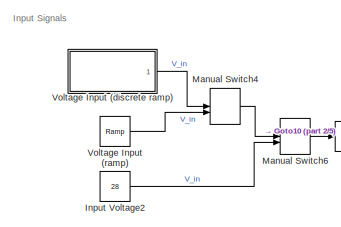
[diagram: root canvas - part 1/5, top left region]
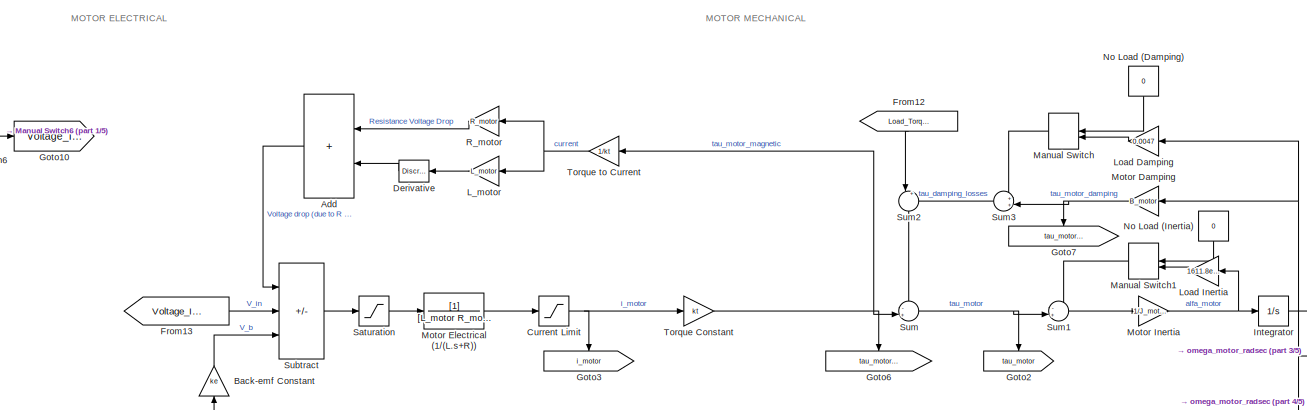
[diagram: root canvas - part 2/5, top center region]
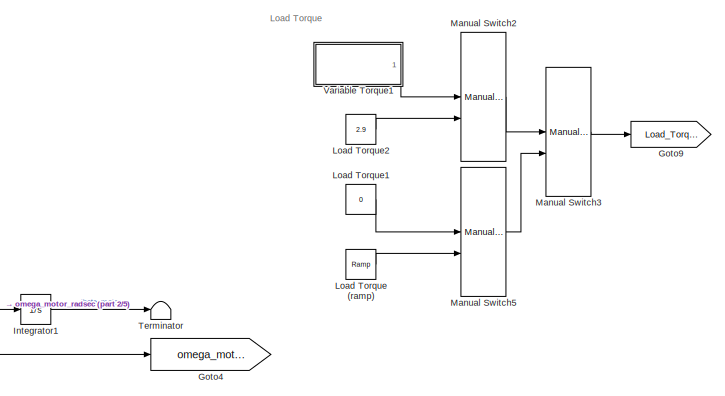
[diagram: root canvas - part 3/5, top right region]
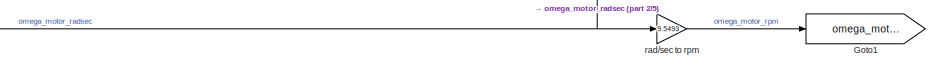
[diagram: root canvas - part 4/5, central region]
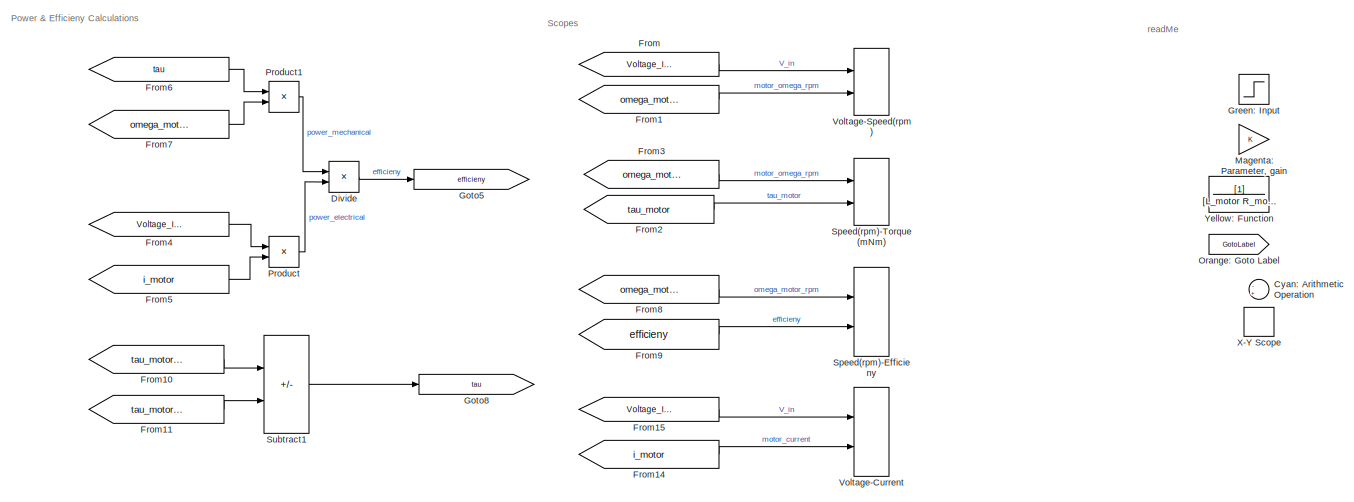
[diagram: root canvas - part 5/5, bottom center region]
MODEL slx_0a9aabed3ec6
KIND model
CONFIG AbsTol = auto
CONFIG EnableMultiTasking = off
CONFIG FixedStep = auto
CONFIG MaxStep = auto
CONFIG MinStep = auto
CONFIG RelTol = 1e-3
CONFIG SampleTimeConstraint = Unconstrained
CONFIG SolverName = VariableStepAuto
CONFIG StartTime = 0.0
CONFIG StopTime = 28
BLOCK [Sum] Add
  IconShape = rectangular
  NameLocation = top
  Ports = [2, 1]
BLOCK [Gain] Back-emf Constant
  Gain = ke
  NameLocation = right
BLOCK [Saturate] Current Limit
  LowerLimit = 0
  UpperLimit = 80
BLOCK [Sum] Cyan: Arithmetic Operation
  Inputs = -+|
  NameLocation = right
  Ports = [2, 1]
BLOCK [Reference] Derivative  REF=simulink/Discrete/Discrete Derivative
  Ports = [1, 1]
  SourceBlock = simulink/Discrete/Discrete Derivative
  SourceProductBaseCode = SL
  SourceType = Discrete Derivative
BLOCK [Product] Divide
  Inputs = */
  Ports = [2, 1]
BLOCK [From] From
  GotoTag = Voltage_Input
BLOCK [From] From1
  GotoTag = omega_motor_rpm
BLOCK [From] From10
  GotoTag = tau_motor_magnetic
BLOCK [From] From11
  GotoTag = tau_motor_damping
BLOCK [From] From12
  GotoTag = Load_Torque
  NameLocation = left
BLOCK [From] From13
  GotoTag = Voltage_Input
BLOCK [From] From14
  GotoTag = i_motor
BLOCK [From] From15
  GotoTag = Voltage_Input
BLOCK [From] From2
  GotoTag = tau_motor
BLOCK [From] From3
  GotoTag = omega_motor_rpm
BLOCK [From] From4
  GotoTag = Voltage_Input
BLOCK [From] From5
  GotoTag = i_motor
BLOCK [From] From6
  GotoTag = tau
BLOCK [From] From7
  GotoTag = omega_motor_radsec
BLOCK [From] From8
  GotoTag = omega_motor_rpm
BLOCK [From] From9
  GotoTag = efficieny
BLOCK [Goto] Goto1
  GotoTag = omega_motor_rpm
BLOCK [Goto] Goto10
  GotoTag = Voltage_Input
BLOCK [Goto] Goto2
  GotoTag = tau_motor
  NameLocation = left
BLOCK [Goto] Goto3
  GotoTag = i_motor
BLOCK [Goto] Goto4
  GotoTag = omega_motor_radsec
BLOCK [Goto] Goto5
  GotoTag = efficieny
BLOCK [Goto] Goto6
  GotoTag = tau_motor_magnetic
  NameLocation = left
BLOCK [Goto] Goto7
  GotoTag = tau_motor_damping
  NameLocation = left
BLOCK [Goto] Goto8
  GotoTag = tau
BLOCK [Goto] Goto9
  GotoTag = Load_Torque
BLOCK [Step] Green: Input
  NameLocation = right
  SampleTime = 0
BLOCK [Constant] Input Voltage2
  Value = 28
BLOCK [Integrator] Integrator
  Ports = [1, 1]
BLOCK [Integrator] Integrator1
  Ports = [1, 1]
BLOCK [Gain] L_motor
  Gain = L_motor
BLOCK [Gain] Load Damping
  Gain = 0.0047
BLOCK [Gain] Load Inertia
  Gain = 1611.8e-06
BLOCK [Reference] Load Torque (ramp)  REF=simulink/Sources/Ramp
  Ports = [0, 1]
  SourceBlock = simulink/Sources/Ramp
  SourceProductBaseCode = SL
  SourceType = Ramp
BLOCK [Constant] Load Torque1
  Value = 0
BLOCK [Constant] Load Torque2
  Value = 2.9
BLOCK [Gain] Magenta: Parameter, gain
  NameLocation = right
BLOCK [ManualSwitch] Manual Switch
  NameLocation = top
BLOCK [ManualSwitch] Manual Switch1
  NameLocation = left
BLOCK [ManualSwitch] Manual Switch2
BLOCK [ManualSwitch] Manual Switch3
  CurrentSetting = 0
BLOCK [ManualSwitch] Manual Switch4
  CurrentSetting = 0
BLOCK [ManualSwitch] Manual Switch5
  CurrentSetting = 0
BLOCK [ManualSwitch] Manual Switch6
  CurrentSetting = 0
BLOCK [Gain] Motor Damping
  Gain = B_motor
BLOCK [TransferFcn] Motor Electrical (1//(L.s+R))
  Denominator = [L_motor R_motor]
BLOCK [Gain] Motor Inertia
  Gain = 1/J_motor
BLOCK [Constant] No Load (Damping)
  NameLocation = top
  Value = 0
BLOCK [Constant] No Load (Inertia)
  NameLocation = right
  Value = 0
BLOCK [Goto] Orange: Goto Label
  GotoTag = GotoLabel
  NameLocation = right
BLOCK [Product] Product
  Ports = [2, 1]
BLOCK [Product] Product1
  Ports = [2, 1]
BLOCK [Gain] R_motor
  Gain = R_motor
  NameLocation = top
BLOCK [Saturate] Saturation
  LowerLimit = 0
  UpperLimit = 28
BLOCK [Record] Speed(rpm)-Efficieny
  CompatibilityTag = XY
  FileSettingsInternal = {"entries":[{"content":{"excelSettings":{"content":{},"type":"Streamout.ExcelSettings"}},"type":"Streamout.FileSettingStorage","uuid":"7df471fc-6218-412d-9226-816465d27147"}],"packageUris":["http://schema.mathworks.com/mf0/streamout_blocks/R2020a"],"version":"1.0"}
  Layout = [1 1]
  Ports = [2]
  SignalsInternal = {"entries":[{"content":{"signals":[{"content":{"blockPath":["deneme_4/Speed(rpm)-Efficieny"],"channel":[],"dimensions":[1],"domain":"deneme_4/Speed(rpm)-Efficieny","lineColor":"#d95319","plots":[1],"port":1,"sid":[""],"signalID":19411,"signalName":"omega_motor_rpm"},"type":"RecordBlkView.Signal","uuid":"8fa2ed62-4937-47c5-90d1-dc8a64c4ba1a"},{"content":{"blockPath":["deneme_4/Speed(rpm)-Efficieny"...<+423ch>
  VisualizationBindings = {"xyplotplugin":{"info":[{"series":[{"bindingParametersList":[{"parameter":"X-Axis","signalID":19411,"signalName":"omega_motor_rpm"},{"parameter":"Y-Axis","signalID":19415,"signalName":"efficieny"}],"seriesID":26403}],"subplotID":1}]}}
BLOCK [Record] Speed(rpm)-Torque(mNm)
  CompatibilityTag = XY
  FileSettingsInternal = {"entries":[{"content":{"excelSettings":{"content":{},"type":"Streamout.ExcelSettings"}},"type":"Streamout.FileSettingStorage","uuid":"315ed191-27cf-4af2-b047-4df13758ca00"}],"packageUris":["http://schema.mathworks.com/mf0/streamout_blocks/R2020a"],"version":"1.0"}
  Layout = [1 1]
  Ports = [2]
  SignalsInternal = {"entries":[{"content":{"signals":[{"content":{"blockPath":["deneme_4/Speed(rpm)-Torque(mNm)"],"channel":[],"dimensions":[1],"domain":"deneme_4/Speed(rpm)-Torque(mNm)","lineColor":"#7e2f8e","plots":[1],"port":1,"sid":[""],"signalID":19419,"signalName":"motor_omega_rpm"},"type":"RecordBlkView.Signal","uuid":"573bfe5e-4eaa-404f-9fbe-c5071d5e986b"},{"content":{"blockPath":["deneme_4/Speed(rpm)-Torque...<+431ch>
  VisualizationBindings = {"xyplotplugin":{"info":[{"series":[{"bindingParametersList":[{"parameter":"X-Axis","signalID":19419,"signalName":"motor_omega_rpm"},{"parameter":"Y-Axis","signalID":19423,"signalName":"tau_motor"}],"seriesID":48988}],"subplotID":1}]}}
BLOCK [Sum] Subtract
  IconShape = rectangular
  Inputs = -+-
  Ports = [3, 1]
BLOCK [Sum] Subtract1
  IconShape = rectangular
  Inputs = +-
  Ports = [2, 1]
BLOCK [Sum] Sum
  Inputs = -+|
  Ports = [2, 1]
BLOCK [Sum] Sum1
  Inputs = -+|
  Ports = [2, 1]
BLOCK [Sum] Sum2
  Inputs = |++
  NameLocation = left
  Ports = [2, 1]
BLOCK [Sum] Sum3
  Inputs = ++|
  NameLocation = top
  Ports = [2, 1]
BLOCK [Terminator] Terminator
BLOCK [Gain] Torque Constant
  Gain = kt
BLOCK [Gain] Torque to Current
  Gain = 1/kt
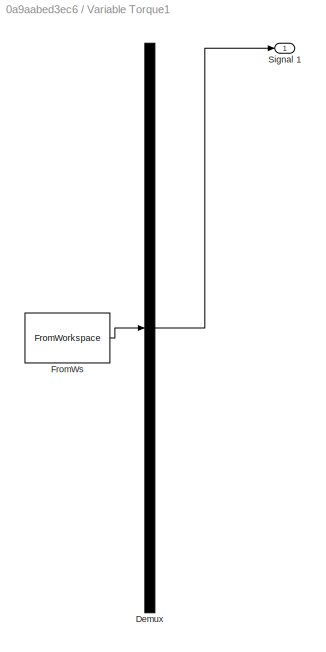
BLOCK [SubSystem] Variable Torque1
  ClipboardFcn = sigbuilder_block('clipboard');
  CloseFcn = sigbuilder_block('close');
  ContinueFcn = sigbuilder_block('continue');
  CopyFcn = sigbuilder_block('copy');
  DeleteFcn = sigbuilder_block('delete');
  LoadFcn = sigbuilder_block('load');
  MaskHideContents = on
  ModelCloseFcn = sigbuilder_block('modelClose');
  NameChangeFcn = sigbuilder_block('namechange');
  OpenFcn = sigbuilder_block('open',[0 36 1440 716.25 ]);
  PauseFcn = sigbuilder_block('pause');
  Ports = [0, 1]
  PreSaveFcn = sigbuilder_block('preSave');
  RequestExecContextInheritance = off
  StartFcn = sigbuilder_block('start');
  StopFcn = sigbuilder_block('stop');
  Tag = STV Subsys
BLOCK [Demux] Variable Torque1/Demux
  DisplayOption = none
  Outputs = 1
  Ports = [1, 1]
  Tag = STV Demux
BLOCK [FromWorkspace] Variable Torque1/FromWs
  Tag = STV FromWs
  VariableName = tuvar
BLOCK [Outport] Variable Torque1/Signal 1
  Tag = STV Outport
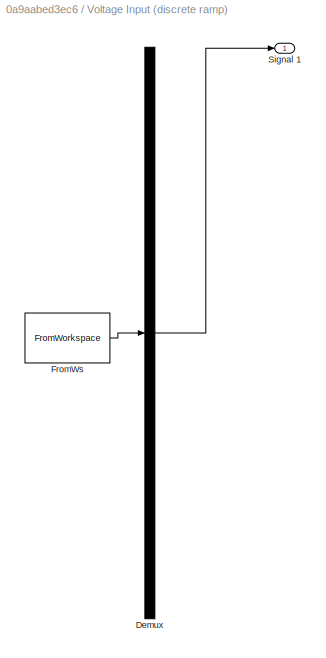
BLOCK [SubSystem] Voltage Input (discrete ramp)
  ClipboardFcn = sigbuilder_block('clipboard');
  CloseFcn = sigbuilder_block('close');
  ContinueFcn = sigbuilder_block('continue');
  CopyFcn = sigbuilder_block('copy');
  DeleteFcn = sigbuilder_block('delete');
  LoadFcn = sigbuilder_block('load');
  MaskHideContents = on
  ModelCloseFcn = sigbuilder_block('modelClose');
  NameChangeFcn = sigbuilder_block('namechange');
  OpenFcn = sigbuilder_block('open',[0.75 36.75 718.5 709.5 ]);
  PauseFcn = sigbuilder_block('pause');
  Ports = [0, 1]
  PreSaveFcn = sigbuilder_block('preSave');
  RequestExecContextInheritance = off
  StartFcn = sigbuilder_block('start');
  StopFcn = sigbuilder_block('stop');
  Tag = STV Subsys
BLOCK [Demux] Voltage Input (discrete ramp)/Demux
  DisplayOption = none
  Outputs = 1
  Ports = [1, 1]
  Tag = STV Demux
BLOCK [FromWorkspace] Voltage Input (discrete ramp)/FromWs
  Tag = STV FromWs
  VariableName = tuvar
BLOCK [Outport] Voltage Input (discrete ramp)/Signal 1
  Tag = STV Outport
BLOCK [Reference] Voltage Input (ramp)  REF=simulink/Sources/Ramp
  Ports = [0, 1]
  SourceBlock = simulink/Sources/Ramp
  SourceProductBaseCode = SL
  SourceType = Ramp
BLOCK [Record] Voltage-Current
  CompatibilityTag = XY
  FileSettingsInternal = {"entries":[{"content":{"excelSettings":{"content":{},"type":"Streamout.ExcelSettings"}},"type":"Streamout.FileSettingStorage","uuid":"9deadd68-2624-47f6-bc80-4eec0aa71c1f"}],"packageUris":["http://schema.mathworks.com/mf0/streamout_blocks/R2020a"],"version":"1.0"}
  Layout = [1 1]
  Ports = [2]
  SignalsInternal = {"entries":[{"content":{"signals":[{"content":{"blockPath":["deneme_4/Voltage-Current"],"channel":[],"dimensions":[1],"domain":"deneme_4/Voltage-Current","lineColor":"#ff13a6","plots":[1],"port":1,"sid":[""],"signalID":19483,"signalName":"V_in"},"type":"RecordBlkView.Signal","uuid":"c032b403-6174-433b-8861-fdb8f2881ace"},{"content":{"blockPath":["deneme_4/Voltage-Current"],"channel":[],"dimensions...<+396ch>
  VisualizationBindings = {"xyplotplugin":{"info":[{"series":[{"bindingParametersList":[{"parameter":"X-Axis","signalID":19483,"signalName":"V_in"},{"parameter":"Y-Axis","signalID":19487,"signalName":"motor_current"}],"seriesID":1906}],"subplotID":1}]}}
BLOCK [Record] Voltage-Speed(rpm)
  CompatibilityTag = XY
  FileSettingsInternal = {"entries":[{"content":{"excelSettings":{"content":{},"type":"Streamout.ExcelSettings"}},"type":"Streamout.FileSettingStorage","uuid":"21ada231-7678-4e9f-96f9-58e67c5ec8dc"}],"packageUris":["http://schema.mathworks.com/mf0/streamout_blocks/R2020a"],"version":"1.0"}
  Layout = [1 1]
  Ports = [2]
  SignalsInternal = {"entries":[{"content":{"signals":[{"content":{"blockPath":["deneme_4/Voltage-Speed(rpm)"],"channel":[],"dimensions":[1],"domain":"deneme_4/Voltage-Speed(rpm)","lineColor":"#7e2f8e","plots":[1],"port":1,"sid":[""],"signalID":19491,"signalName":"V_in"},"type":"RecordBlkView.Signal","uuid":"6a28d7d5-b34d-4bb4-90cb-0c0761e3f10c"},{"content":{"blockPath":["deneme_4/Voltage-Speed(rpm)"],"channel":[],"d...<+410ch>
  VisualizationBindings = {"xyplotplugin":{"info":[{"series":[{"bindingParametersList":[{"parameter":"X-Axis","signalID":19491,"signalName":"V_in"},{"parameter":"Y-Axis","signalID":19495,"signalName":"motor_omega_rpm"}],"seriesID":30810}],"subplotID":1}]}}
BLOCK [Record] X-Y Scope
  CompatibilityTag = XY
  FileSettingsInternal = {"entries":[{"content":{"excelSettings":{"content":{},"type":"Streamout.ExcelSettings"}},"type":"Streamout.FileSettingStorage","uuid":"0f904335-7ad7-4e23-8479-2fe4c462a63c"}],"packageUris":["http://schema.mathworks.com/mf0/streamout_blocks/R2020a"],"version":"1.0"}
  Layout = [1 1]
  NameLocation = right
  Ports = [2]
  SignalsInternal = {"entries":[{"content":{"signals":[{"content":{"blockPath":["deneme_4/X-Y Scope"],"channel":[],"dimensions":[1],"domain":"deneme_4/X-Y Scope","lineColor":"#fe330a","plots":[],"port":1,"sid":[""],"signalID":19511},"type":"RecordBlkView.Signal","uuid":"0ff1d7dc-f8e1-49ae-a194-e317b15a0efa"},{"content":{"blockPath":["deneme_4/X-Y Scope"],"channel":[],"dimensions":[1],"domain":"deneme_4/X-Y Scope","li...<+321ch>
  VisualizationBindings = {"xyplotplugin":{"info":[{"series":[],"subplotID":1}]}}
BLOCK [TransferFcn] Yellow: Function
  Denominator = [L_motor R_motor]
  NameLocation = right
BLOCK [Gain] rad//sec to rpm
  Gain = 9.5493
ANNOTATION (root): Input Signals
ANNOTATION (root): Load Torque
ANNOTATION (root): MOTOR ELECTRICAL
ANNOTATION (root): MOTOR MECHANICAL
ANNOTATION (root): Power & Efficieny Calculations
ANNOTATION (root): Scopes
ANNOTATION (root): readMe
LINE Add:1 -> Subtract:1
LINE Back-emf Constant:1 -> Subtract:3
NET Current Limit:1 -> Goto3:1, Torque Constant:1
LINE Derivative:1 -> Add:2
LINE Divide:1 -> Goto5:1
LINE From10:1 -> Subtract1:1
LINE From11:1 -> Subtract1:2
LINE From12:1 -> Sum2:1
LINE From13:1 -> Subtract:2
LINE From14:1 -> Voltage-Current:2
LINE From15:1 -> Voltage-Current:1
LINE From1:1 -> Voltage-Speed(rpm):2
LINE From2:1 -> Speed(rpm)-Torque(mNm):2
LINE From3:1 -> Speed(rpm)-Torque(mNm):1
LINE From4:1 -> Product:1
LINE From5:1 -> Product:2
LINE From6:1 -> Product1:1
LINE From7:1 -> Product1:2
LINE From8:1 -> Speed(rpm)-Efficieny:1
LINE From9:1 -> Speed(rpm)-Efficieny:2
LINE From:1 -> Voltage-Speed(rpm):1
LINE Input Voltage2:1 -> Manual Switch6:2
LINE Integrator1:1 -> Terminator:1
NET Integrator:1 -> Back-emf Constant:1, Goto4:1, Integrator1:1, Load Damping:1, Motor Damping:1, rad//sec to rpm:1
LINE L_motor:1 -> Derivative:1
LINE Load Damping:1 -> Manual Switch:2
LINE Load Inertia:1 -> Manual Switch1:2
LINE Load Torque (ramp):1 -> Manual Switch5:2
LINE Load Torque1:1 -> Manual Switch5:1
LINE Load Torque2:1 -> Manual Switch2:2
LINE Manual Switch1:1 -> Sum1:1
LINE Manual Switch2:1 -> Manual Switch3:1
LINE Manual Switch3:1 -> Goto9:1
LINE Manual Switch4:1 -> Manual Switch6:1
LINE Manual Switch5:1 -> Manual Switch3:2
LINE Manual Switch6:1 -> Goto10:1
LINE Manual Switch:1 -> Sum3:1
NET Motor Damping:1 -> Goto7:1, Sum3:2
LINE Motor Electrical (1//(L.s+R)):1 -> Current Limit:1
NET Motor Inertia:1 -> Integrator:1, Load Inertia:1
LINE No Load (Damping):1 -> Manual Switch:1
LINE No Load (Inertia):1 -> Manual Switch1:1
LINE Product1:1 -> Divide:1
LINE Product:1 -> Divide:2
LINE R_motor:1 -> Add:1
LINE Saturation:1 -> Motor Electrical (1//(L.s+R)):1
LINE Subtract1:1 -> Goto8:1
LINE Subtract:1 -> Saturation:1
LINE Sum1:1 -> Motor Inertia:1
LINE Sum2:1 -> Sum:1
LINE Sum3:1 -> Sum2:2
NET Sum:1 -> Goto2:1, Sum1:2
NET Torque Constant:1 -> Goto6:1, Sum:2, Torque to Current:1
NET Torque to Current:1 -> L_motor:1, R_motor:1
LINE Variable Torque1:1 -> Manual Switch2:1
LINE Voltage Input (discrete ramp):1 -> Manual Switch4:1
LINE Voltage Input (ramp):1 -> Manual Switch4:2
LINE rad//sec to rpm:1 -> Goto1:1
note: NET lines group one-source signal fan-out (src -> all destinations, sorted); 1:1 wires keep LINE
